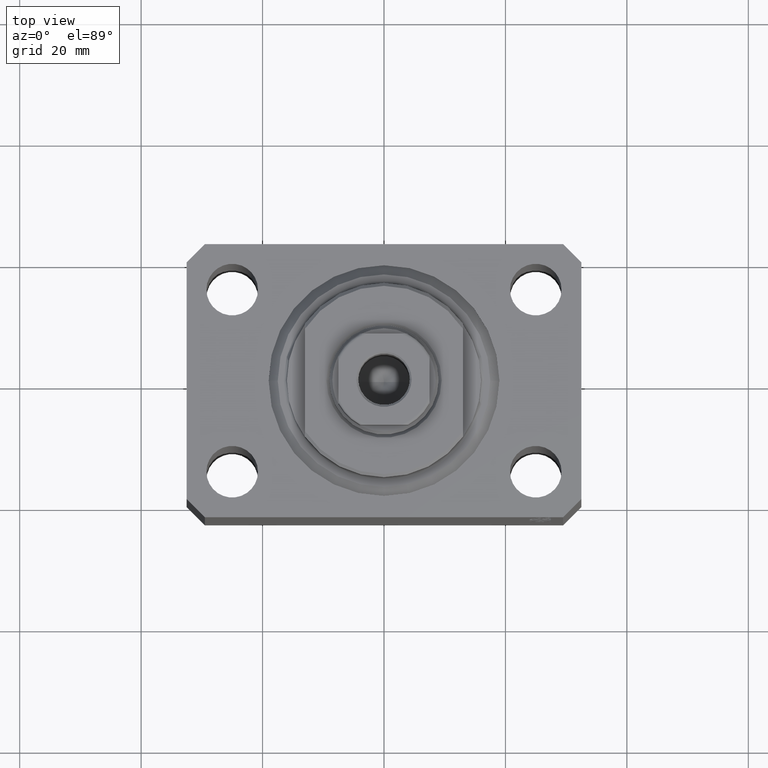
[diagram: clean part render]
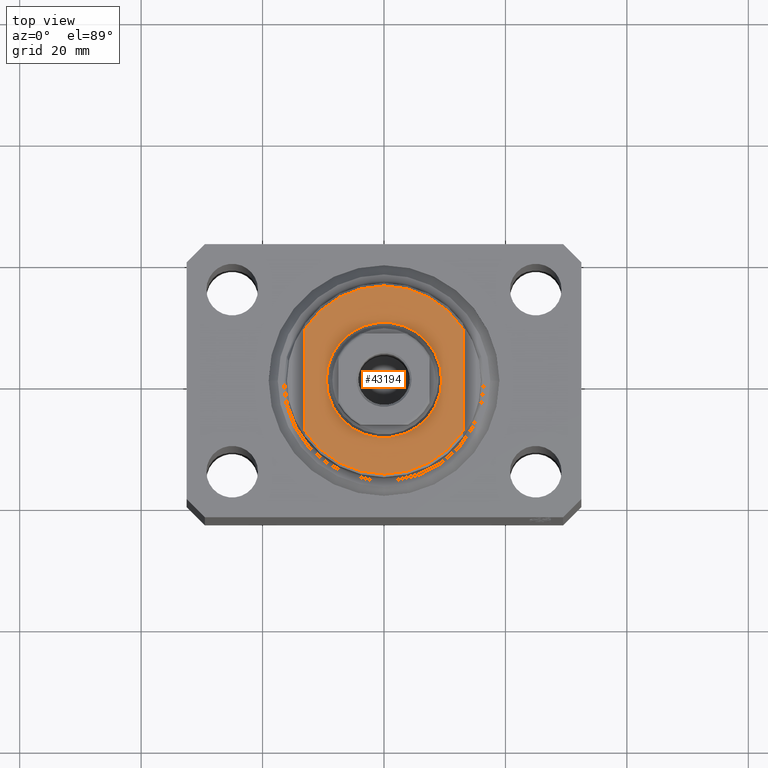
[diagram: same view with one face highlighted and labeled with its STEP entity id]
A machine part, top view. The second image highlights one B-rep face of the part: STEP entity #43194.
In plain terms, the highlighted planar face has unit normal (0, 0, 1).
Its self-contained STEP definition (entity closure, byte-faithful):
#2 = ORIENTED_EDGE ( 'NONE', *, *, #196, .F. ) ;
#196 = EDGE_CURVE ( 'NONE', #23045, #35742, #8704, .T. ) ;
#1223 = VERTEX_POINT ( 'NONE', #31783 ) ;
#1282 = ORIENTED_EDGE ( 'NONE', *, *, #39140, .T. ) ;
#1489 = VERTEX_POINT ( 'NONE', #8038 ) ;
#1923 = DIRECTION ( 'NONE',  ( -0.000000000000000000, -1.000000000000000000, -0.000000000000000000 ) ) ;
#2420 = CIRCLE ( 'NONE', #31296, 15.50000000000003730 ) ;
#4723 = CARTESIAN_POINT ( 'NONE',  ( 0.000000000000000000, 0.000000000000000000, -6.500000000000000000 ) ) ;
#5962 = ORIENTED_EDGE ( 'NONE', *, *, #41822, .T. ) ;
#6586 = EDGE_LOOP ( 'NONE', ( #1282, #5962 ) ) ;
#7506 = AXIS2_PLACEMENT_3D ( 'NONE', #4723, #28687, #42471 ) ;
#8038 = CARTESIAN_POINT ( 'NONE',  ( -9.500000000000001776, 0.000000000000000000, -6.500000000000000000 ) ) ;
#8484 = FACE_OUTER_BOUND ( 'NONE', #10249, .T. ) ;
#8704 = LINE ( 'NONE', #36279, #20280 ) ;
#9367 = DIRECTION ( 'NONE',  ( -1.000000000000000000, 0.000000000000000000, 0.000000000000000000 ) ) ;
#9821 = CARTESIAN_POINT ( 'NONE',  ( 0.000000000000000000, 0.000000000000000000, -6.500000000000000000 ) ) ;
#10249 = EDGE_LOOP ( 'NONE', ( #20104, #28385, #23153, #2 ) ) ;
#11882 = FACE_BOUND ( 'NONE', #6586, .T. ) ;
#12720 = DIRECTION ( 'NONE',  ( -1.000000000000000000, 0.000000000000000000, 0.000000000000000000 ) ) ;
#13286 = EDGE_CURVE ( 'NONE', #23045, #39026, #2420, .T. ) ;
#14890 = LINE ( 'NONE', #28676, #28149 ) ;
#15737 = DIRECTION ( 'NONE',  ( 0.000000000000000000, 0.000000000000000000, -1.000000000000000000 ) ) ;
#16139 = CARTESIAN_POINT ( 'NONE',  ( -13.00000000000000000, -8.440971508067137918, -6.500000000000000000 ) ) ;
#19945 = DIRECTION ( 'NONE',  ( -0.000000000000000000, -0.000000000000000000, 1.000000000000000000 ) ) ;
#20104 = ORIENTED_EDGE ( 'NONE', *, *, #13286, .T. ) ;
#20280 = VECTOR ( 'NONE', #1923, 1000.000000000000000 ) ;
#22420 = DIRECTION ( 'NONE',  ( -0.000000000000000000, -0.000000000000000000, 1.000000000000000000 ) ) ;
#22640 = CARTESIAN_POINT ( 'NONE',  ( 0.000000000000000000, 0.000000000000000000, -6.500000000000000000 ) ) ;
#22684 = CIRCLE ( 'NONE', #7506, 15.50000000000003730 ) ;
#23001 = CARTESIAN_POINT ( 'NONE',  ( 9.500000000000001776, 1.163414459189985880E-15, -6.500000000000000000 ) ) ;
#23045 = VERTEX_POINT ( 'NONE', #25692 ) ;
#23153 = ORIENTED_EDGE ( 'NONE', *, *, #31450, .T. ) ;
#24943 = EDGE_CURVE ( 'NONE', #39026, #1223, #14890, .T. ) ;
#25692 = CARTESIAN_POINT ( 'NONE',  ( -13.00000000000000000, 8.440971508067137918, -6.500000000000000000 ) ) ;
#28149 = VECTOR ( 'NONE', #42460, 1000.000000000000000 ) ;
#28385 = ORIENTED_EDGE ( 'NONE', *, *, #24943, .T. ) ;
#28676 = CARTESIAN_POINT ( 'NONE',  ( 13.00000000000000000, -43.08131845707602992, -6.500000000000000000 ) ) ;
#28687 = DIRECTION ( 'NONE',  ( 0.000000000000000000, 0.000000000000000000, -1.000000000000000000 ) ) ;
#29513 = DIRECTION ( 'NONE',  ( -1.000000000000000000, 0.000000000000000000, -0.000000000000000000 ) ) ;
#29517 = AXIS2_PLACEMENT_3D ( 'NONE', #39233, #15737, #29513 ) ;
#31296 = AXIS2_PLACEMENT_3D ( 'NONE', #9821, #33769, #9367 ) ;
#31450 = EDGE_CURVE ( 'NONE', #1223, #35742, #22684, .T. ) ;
#31783 = CARTESIAN_POINT ( 'NONE',  ( 13.00000000000000000, -8.440971508067137918, -6.500000000000000000 ) ) ;
#32344 = CIRCLE ( 'NONE', #38121, 9.500000000000001776 ) ;
#33033 = DIRECTION ( 'NONE',  ( -1.000000000000000000, 0.000000000000000000, 0.000000000000000000 ) ) ;
#33769 = DIRECTION ( 'NONE',  ( 0.000000000000000000, 0.000000000000000000, -1.000000000000000000 ) ) ;
#34419 = CIRCLE ( 'NONE', #38743, 9.500000000000001776 ) ;
#35742 = VERTEX_POINT ( 'NONE', #16139 ) ;
#35781 = CARTESIAN_POINT ( 'NONE',  ( 13.00000000000000000, 8.440971508067137918, -6.500000000000000000 ) ) ;
#36279 = CARTESIAN_POINT ( 'NONE',  ( -13.00000000000000000, -43.08131845707602992, -6.500000000000000000 ) ) ;
#36520 = PLANE ( 'NONE',  #29517 ) ;
#37119 = CARTESIAN_POINT ( 'NONE',  ( 0.000000000000000000, 0.000000000000000000, -6.500000000000000000 ) ) ;
#38121 = AXIS2_PLACEMENT_3D ( 'NONE', #22640, #22420, #33033 ) ;
#38743 = AXIS2_PLACEMENT_3D ( 'NONE', #37119, #19945, #12720 ) ;
#38759 = VERTEX_POINT ( 'NONE', #23001 ) ;
#39026 = VERTEX_POINT ( 'NONE', #35781 ) ;
#39140 = EDGE_CURVE ( 'NONE', #1489, #38759, #34419, .T. ) ;
#39233 = CARTESIAN_POINT ( 'NONE',  ( 0.000000000000000000, 0.000000000000000000, -6.500000000000000000 ) ) ;
#41822 = EDGE_CURVE ( 'NONE', #38759, #1489, #32344, .T. ) ;
#42460 = DIRECTION ( 'NONE',  ( 0.000000000000000000, -1.000000000000000000, -0.000000000000000000 ) ) ;
#42471 = DIRECTION ( 'NONE',  ( -1.000000000000000000, 0.000000000000000000, 0.000000000000000000 ) ) ;
#43194 = ADVANCED_FACE ( 'NONE', ( #11882, #8484 ), #36520, .T. ) ;